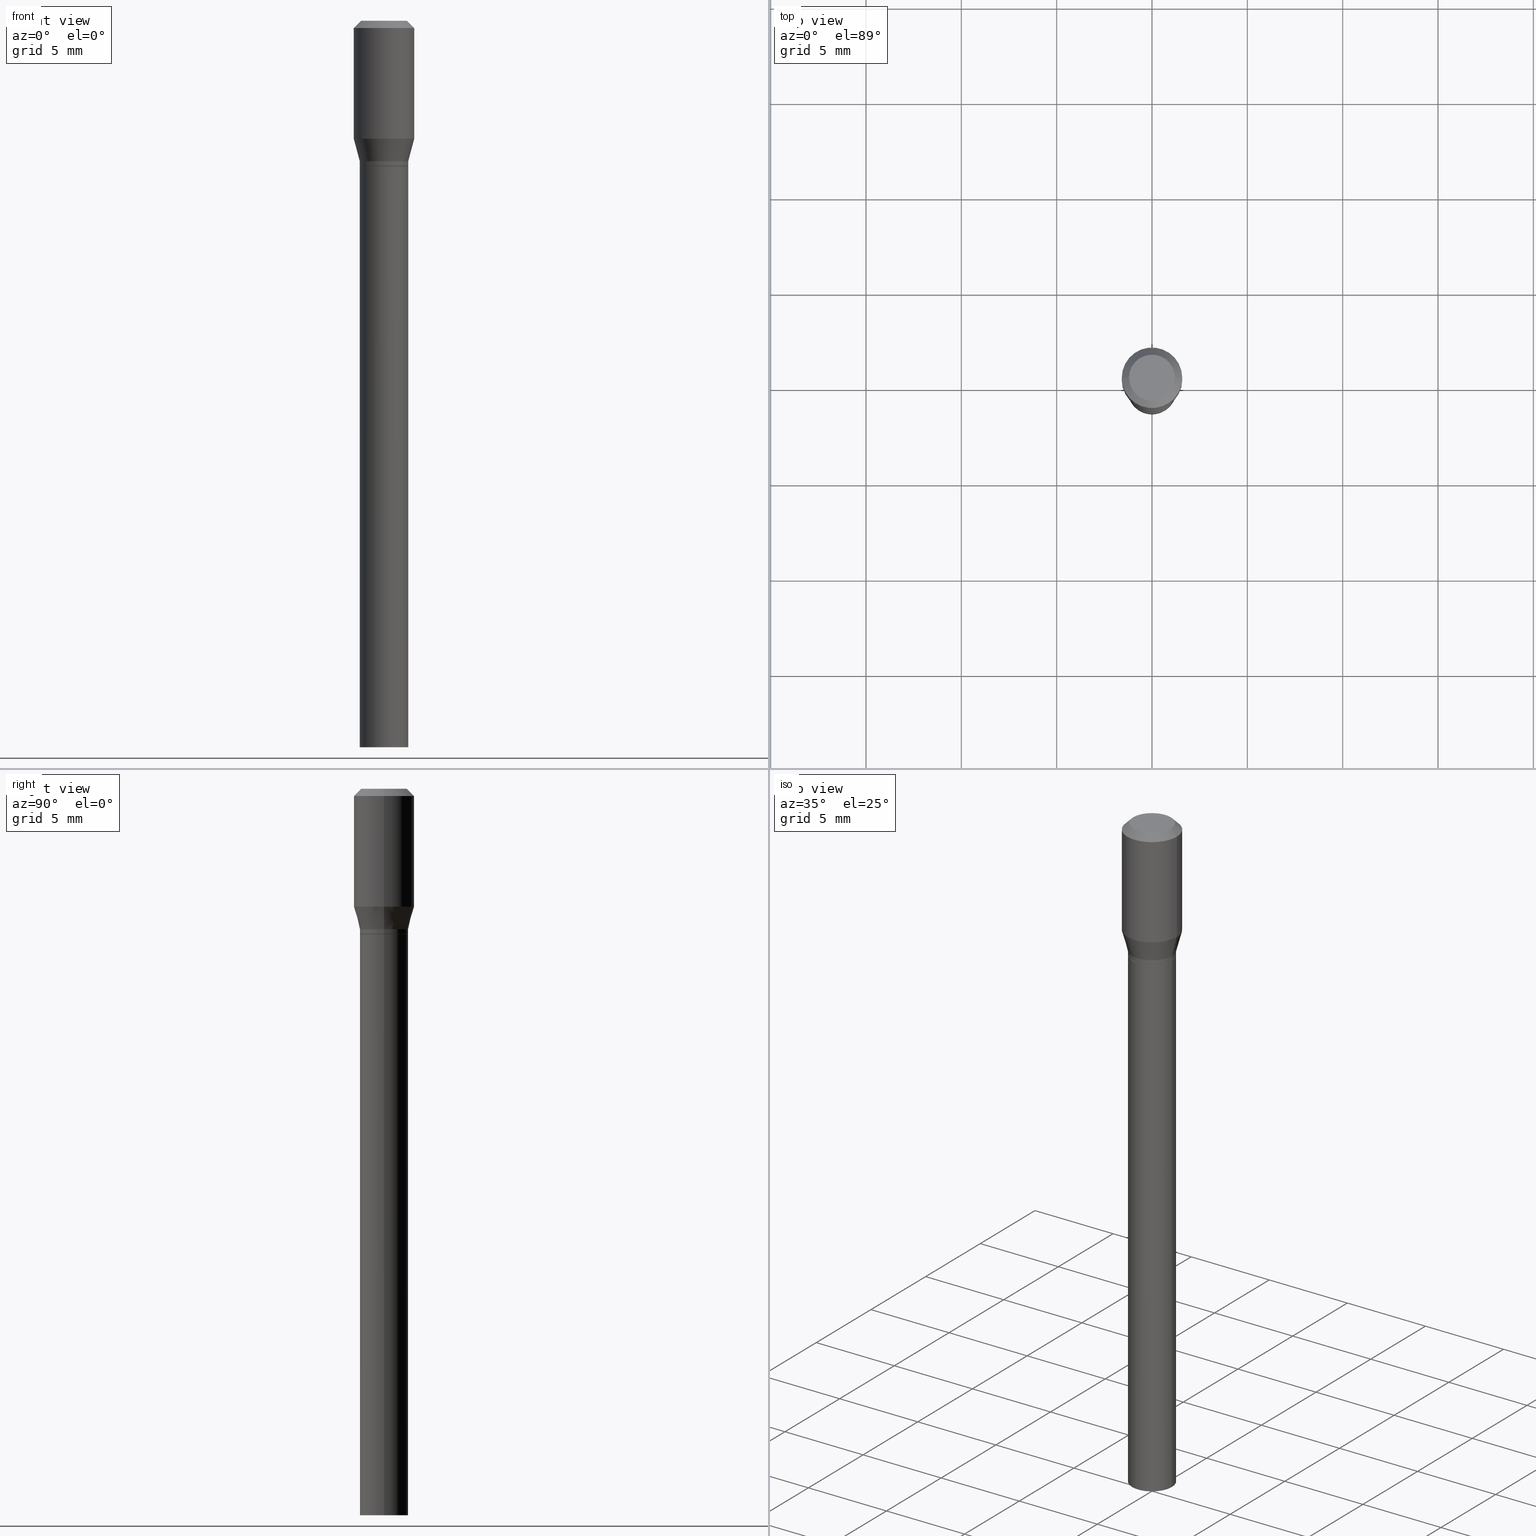
[diagram: canonical four-view strip — front | top / right | iso, engineering-drawing reading convention]
A machine part, canonical four-view strip (front | top / right | iso — engineering-drawing reading convention). The complete STEP part file that produces these views, byte-faithful:
ISO-10303-21;
HEADER;
FILE_DESCRIPTION (( 'STEP AP203' ),
    '1' );
FILE_NAME ('02716.STEP',
    '2024-03-18T21:37:17',
    ( '' ),
    ( '' ),
    'SwSTEP 2.0',
    'SolidWorks 2023',
    '' );
FILE_SCHEMA (( 'CONFIG_CONTROL_DESIGN' ));
ENDSEC;

DATA;
#1 = ADVANCED_FACE ( 'NONE', ( #269 ), #233, .F. ) ;
#2 = AXIS2_PLACEMENT_3D ( 'NONE', #274, #423, #183 ) ;
#3 = FACE_OUTER_BOUND ( 'NONE', #355, .T. ) ;
#4 = DIRECTION ( 'NONE',  ( -1.000000000000000000, 6.982962677686266711E-15, 0.000000000000000000 ) ) ;
#5 = EDGE_CURVE ( 'NONE', #420, #188, #295, .T. ) ;
#6 = FACE_OUTER_BOUND ( 'NONE', #330, .T. ) ;
#7 = ADVANCED_BREP_SHAPE_REPRESENTATION ( '02716', ( #438, #275, #167 ), #17 ) ;
#8 = CARTESIAN_POINT ( 'NONE',  ( -0.05000000000000000278, -6.572582203844627808E-16, -0.2900000000000002021 ) ) ;
#9 = DIRECTION ( 'NONE',  ( 1.000000000000000000, -6.982962677686264344E-15, 0.000000000000000000 ) ) ;
#10 = CC_DESIGN_PERSON_AND_ORGANIZATION_ASSIGNMENT ( #78, #408, ( #445 ) ) ;
#11 = AXIS2_PLACEMENT_3D ( 'NONE', #367, #107, #9 ) ;
#12 = DIRECTION ( 'NONE',  ( -2.445468806185136597E-29, 3.491481338843145583E-15, 1.000000000000000000 ) ) ;
#13 = ORIENTED_EDGE ( 'NONE', *, *, #365, .F. ) ;
#14 = CARTESIAN_POINT ( 'NONE',  ( 7.324179074524489343E-30, -1.045698660983522842E-15, -0.2995000000000002105 ) ) ;
#15 = ADVANCED_FACE ( 'NONE', ( #6 ), #370, .T. ) ;
#16 = AXIS2_PLACEMENT_3D ( 'NONE', #350, #25, #173 ) ;
#17 =( GEOMETRIC_REPRESENTATION_CONTEXT ( 3 ) GLOBAL_UNCERTAINTY_ASSIGNED_CONTEXT ( ( #301 ) ) GLOBAL_UNIT_ASSIGNED_CONTEXT ( ( #376, #121, #43 ) ) REPRESENTATION_CONTEXT ( 'NONE', 'WORKASPACE' ) );
#18 = CALENDAR_DATE ( 2024, 18, 3 ) ;
#19 = DIRECTION ( 'NONE',  ( -2.445468806185136597E-29, 3.491481338843145583E-15, 1.000000000000000000 ) ) ;
#20 = CARTESIAN_POINT ( 'NONE',  ( 0.05000000000000003053, -1.394846794867836572E-15, -0.2995000000000002105 ) ) ;
#21 = DIRECTION ( 'NONE',  ( -2.445468806185136597E-29, 3.491481338843145583E-15, 1.000000000000000000 ) ) ;
#22 = FACE_OUTER_BOUND ( 'NONE', #122, .T. ) ;
#23 = DIRECTION ( 'NONE',  ( 1.000000000000000000, -6.982962677686267499E-15, 4.884662768193073002E-29 ) ) ;
#24 = ADVANCED_FACE ( 'NONE', ( #213 ), #110, .T. ) ;
#25 = DIRECTION ( 'NONE',  ( -2.438088387897960049E-29, 3.491481338843145188E-15, 1.000000000000000000 ) ) ;
#26 = AXIS2_PLACEMENT_3D ( 'NONE', #249, #253, #392 ) ;
#27 = COORDINATED_UNIVERSAL_TIME_OFFSET ( 5, 0, .BEHIND. ) ;
#28 = DIRECTION ( 'NONE',  ( 1.000000000000000000, -6.982962677686267499E-15, 4.876176775795936353E-29 ) ) ;
#29 = LINE ( 'NONE', #437, #48 ) ;
#30 = ORIENTED_EDGE ( 'NONE', *, *, #71, .T. ) ;
#31 = DIRECTION ( 'NONE',  ( -2.445468806185136877E-29, 3.491481338843145188E-15, 1.000000000000000000 ) ) ;
#32 = DIRECTION ( 'NONE',  ( 1.000000000000000000, -6.982962677686265133E-15, 0.000000000000000000 ) ) ;
#33 = AXIS2_PLACEMENT_3D ( 'NONE', #190, #12, #58 ) ;
#34 = DIRECTION ( 'NONE',  ( -2.445468806185136597E-29, 3.491481338843145583E-15, 1.000000000000000000 ) ) ;
#35 = DIRECTION ( 'NONE',  ( 1.000000000000000000, -6.982962677686265922E-15, 4.876176775795935793E-29 ) ) ;
#36 = ORIENTED_EDGE ( 'NONE', *, *, #391, .F. ) ;
#37 = EDGE_LOOP ( 'NONE', ( #456, #189, #232, #13 ) ) ;
#38 = DATE_AND_TIME ( #123, #460 ) ;
#39 = ORIENTED_EDGE ( 'NONE', *, *, #331, .T. ) ;
#40 = DATE_AND_TIME ( #157, #309 ) ;
#41 = DIRECTION ( 'NONE',  ( 1.000000000000000000, -6.982962677686267499E-15, 4.876176775795936353E-29 ) ) ;
#42 = ORIENTED_EDGE ( 'NONE', *, *, #331, .F. ) ;
#43 =( NAMED_UNIT ( * ) SI_UNIT ( $, .STERADIAN. ) SOLID_ANGLE_UNIT ( ) );
#44 = FACE_OUTER_BOUND ( 'NONE', #287, .T. ) ;
#45 = ADVANCED_FACE ( 'NONE', ( #175 ), #396, .T. ) ;
#46 = CYLINDRICAL_SURFACE ( 'NONE', #181, 0.05000000000000000971 ) ;
#47 = CIRCLE ( 'NONE', #394, 0.06250000000000000000 ) ;
#48 = VECTOR ( 'NONE', #211, 39.37007874015748143 ) ;
#49 = AXIS2_PLACEMENT_3D ( 'NONE', #14, #346, #85 ) ;
#50 = DIRECTION ( 'NONE',  ( -1.000000000000000000, 6.982962677686265922E-15, -4.876176775795935793E-29 ) ) ;
#51 = DIRECTION ( 'NONE',  ( 1.000000000000000000, -6.982962677686265133E-15, 0.000000000000000000 ) ) ;
#52 = DIRECTION ( 'NONE',  ( -2.445468806185136597E-29, 3.491481338843145583E-15, 1.000000000000000000 ) ) ;
#53 = DIRECTION ( 'NONE',  ( -2.445468806185136597E-29, 3.491481338843145583E-15, 1.000000000000000000 ) ) ;
#54 = CARTESIAN_POINT ( 'NONE',  ( 0.05000000000000000278, -1.396592535537257878E-15, -0.3000000000000002109 ) ) ;
#55 = CONICAL_SURFACE ( 'NONE', #262, 0.06250000000000000000, 0.7853981633974456145 ) ;
#56 = CARTESIAN_POINT ( 'NONE',  ( 3.668203209277704895E-29, -5.237222008264718177E-15, -1.500000000000000222 ) ) ;
#57 = EDGE_CURVE ( 'NONE', #227, #372, #179, .T. ) ;
#58 = DIRECTION ( 'NONE',  ( 1.000000000000000000, -6.982962677686266711E-15, 4.876176775795935793E-29 ) ) ;
#59 = ORIENTED_EDGE ( 'NONE', *, *, #452, .T. ) ;
#60 = DIRECTION ( 'NONE',  ( 0.7071067811865454633, -7.319954787623246579E-15, -0.7071067811865493491 ) ) ;
#61 = CARTESIAN_POINT ( 'NONE',  ( 3.316907271900976096E-16, 0.04749999999999999362, -1.227548324517800049E-16 ) ) ;
#62 = DIRECTION ( 'NONE',  ( -2.445468806185136597E-29, 3.491481338843145583E-15, 1.000000000000000000 ) ) ;
#63 = DIRECTION ( 'NONE',  ( -2.445468806185136877E-29, 3.491481338843145188E-15, 1.000000000000000000 ) ) ;
#64 = ORIENTED_EDGE ( 'NONE', *, *, #425, .T. ) ;
#65 = ORIENTED_EDGE ( 'NONE', *, *, #254, .F. ) ;
#66 = CARTESIAN_POINT ( 'NONE',  ( -0.05000000000000003053, -6.904272931034725319E-16, -0.2995000000000002105 ) ) ;
#67 = EDGE_LOOP ( 'NONE', ( #410, #73, #239, #145 ) ) ;
#68 = FACE_OUTER_BOUND ( 'NONE', #151, .T. ) ;
#69 = EDGE_LOOP ( 'NONE', ( #36, #39, #64, #414 ) ) ;
#70 = APPROVAL_ROLE ( '' ) ;
#71 = EDGE_CURVE ( 'NONE', #451, #366, #101, .T. ) ;
#72 = ORIENTED_EDGE ( 'NONE', *, *, #384, .T. ) ;
#73 = ORIENTED_EDGE ( 'NONE', *, *, #117, .T. ) ;
#74 = AXIS2_PLACEMENT_3D ( 'NONE', #209, #92, #23 ) ;
#75 = APPROVAL_PERSON_ORGANIZATION ( #403, #398, #70 ) ;
#76 = ADVANCED_FACE ( 'NONE', ( #79 ), #160, .T. ) ;
#77 = ORIENTED_EDGE ( 'NONE', *, *, #241, .T. ) ;
#78 = PERSON_AND_ORGANIZATION ( #348, #87 ) ;
#79 = FACE_OUTER_BOUND ( 'NONE', #217, .T. ) ;
#80 = DIRECTION ( 'NONE',  ( -2.445468806185136877E-29, 3.491481338843145188E-15, 1.000000000000000000 ) ) ;
#81 = DIRECTION ( 'NONE',  ( -2.445468806185136597E-29, 3.491481338843145583E-15, 1.000000000000000000 ) ) ;
#82 = ORIENTED_EDGE ( 'NONE', *, *, #440, .T. ) ;
#83 = DATE_TIME_ROLE ( 'creation_date' ) ;
#84 = APPLICATION_PROTOCOL_DEFINITION ( 'international standard', 'config_control_design', 1994, #124 ) ;
#85 = DIRECTION ( 'NONE',  ( 1.000000000000000000, -6.982962677686268288E-15, 0.000000000000000000 ) ) ;
#86 = DIRECTION ( 'NONE',  ( -2.445468806185136597E-29, 3.491481338843145583E-15, 1.000000000000000000 ) ) ;
#87 = ORGANIZATION ( 'UNSPECIFIED', 'UNSPECIFIED', '' ) ;
#88 = CARTESIAN_POINT ( 'NONE',  ( 3.491481338843206325E-16, 0.04999999999999895500, -0.3000000000000003775 ) ) ;
#89 = EDGE_CURVE ( 'NONE', #302, #150, #29, .T. ) ;
#90 = CIRCLE ( 'NONE', #218, 0.05000000000000000278 ) ;
#91 = PERSON_AND_ORGANIZATION ( #348, #87 ) ;
#92 = DIRECTION ( 'NONE',  ( -2.445468806185136597E-29, 3.491481338843145583E-15, 1.000000000000000000 ) ) ;
#93 = DIRECTION ( 'NONE',  ( 1.000000000000000000, -6.982962677686265922E-15, 0.000000000000000000 ) ) ;
#94 = FACE_OUTER_BOUND ( 'NONE', #404, .T. ) ;
#95 = CALENDAR_DATE ( 2024, 18, 3 ) ;
#96 = EDGE_CURVE ( 'NONE', #219, #115, #216, .T. ) ;
#97 = DIRECTION ( 'NONE',  ( 2.445468806185136597E-29, -3.491481338843145583E-15, -1.000000000000000000 ) ) ;
#98 = CARTESIAN_POINT ( 'NONE',  ( 0.06250000000000000000, -4.811533449433679005E-16, -0.01499999999999999944 ) ) ;
#99 = CIRCLE ( 'NONE', #387, 0.05000000000000003053 ) ;
#100 = DIRECTION ( 'NONE',  ( 1.000000000000000000, -6.982962677686267499E-15, 4.876176775795936353E-29 ) ) ;
#101 = LINE ( 'NONE', #352, #158 ) ;
#102 = DIRECTION ( 'NONE',  ( 1.000000000000000000, -6.982962677686264344E-15, 0.000000000000000000 ) ) ;
#103 = FACE_OUTER_BOUND ( 'NONE', #312, .T. ) ;
#104 = APPROVAL_ROLE ( '' ) ;
#105 = DIRECTION ( 'NONE',  ( 1.000000000000000000, -6.982962677686264344E-15, 0.000000000000000000 ) ) ;
#106 = CARTESIAN_POINT ( 'NONE',  ( 0.000000000000000000, 0.000000000000000000, 0.000000000000000000 ) ) ;
#107 = DIRECTION ( 'NONE',  ( -2.445468806185136597E-29, 3.491481338843145583E-15, 1.000000000000000000 ) ) ;
#108 = APPROVAL_STATUS ( 'not_yet_approved' ) ;
#109 = ORIENTED_EDGE ( 'NONE', *, *, #57, .F. ) ;
#110 = CONICAL_SURFACE ( 'NONE', #26, 0.04950000000000000233, 0.7853981633974739252 ) ;
#111 = CARTESIAN_POINT ( 'NONE',  ( 0.06250000000000000000, -1.286084933741889410E-15, -0.2433493649053893038 ) ) ;
#112 = ORIENTED_EDGE ( 'NONE', *, *, #71, .F. ) ;
#113 = SHAPE_DEFINITION_REPRESENTATION ( #360, #7 ) ;
#114 = APPROVAL ( #443, 'UNSPECIFIED' ) ;
#115 = VERTEX_POINT ( 'NONE', #462 ) ;
#116 = ORIENTED_EDGE ( 'NONE', *, *, #409, .T. ) ;
#117 = EDGE_CURVE ( 'NONE', #147, #219, #135, .T. ) ;
#118 = VERTEX_POINT ( 'NONE', #212 ) ;
#119 = CIRCLE ( 'NONE', #453, 0.05000000000000000278 ) ;
#120 = CIRCLE ( 'NONE', #306, 0.05000000000000000278 ) ;
#121 =( NAMED_UNIT ( * ) PLANE_ANGLE_UNIT ( ) SI_UNIT ( $, .RADIAN. ) );
#122 = EDGE_LOOP ( 'NONE', ( #435, #65 ) ) ;
#123 = CALENDAR_DATE ( 2024, 18, 3 ) ;
#124 = APPLICATION_CONTEXT ( 'configuration controlled 3d designs of mechanical parts and assemblies' ) ;
#125 = DIRECTION ( 'NONE',  ( -2.445468806185136877E-29, 3.491481338843145188E-15, 1.000000000000000000 ) ) ;
#126 = VECTOR ( 'NONE', #293, 39.37007874015748143 ) ;
#127 = AXIS2_PLACEMENT_3D ( 'NONE', #61, #300, #131 ) ;
#128 = EDGE_CURVE ( 'NONE', #366, #156, #308, .T. ) ;
#129 = PERSON_AND_ORGANIZATION_ROLE ( 'classification_officer' ) ;
#130 = DIRECTION ( 'NONE',  ( 2.438088387897960049E-29, -3.491481338843145188E-15, -1.000000000000000000 ) ) ;
#131 = DIRECTION ( 'NONE',  ( -1.000000000000000000, 6.982962677686265922E-15, -4.876176775795935793E-29 ) ) ;
#132 = FACE_OUTER_BOUND ( 'NONE', #257, .T. ) ;
#133 = CIRCLE ( 'NONE', #208, 0.06250000000000000000 ) ;
#134 = ADVANCED_FACE ( 'NONE', ( #103 ), #280, .T. ) ;
#135 = LINE ( 'NONE', #98, #385 ) ;
#136 = EDGE_CURVE ( 'NONE', #227, #193, #326, .T. ) ;
#137 = CARTESIAN_POINT ( 'NONE',  ( 3.668203209277705088E-31, -5.237222008264718399E-17, -0.01499999999999999944 ) ) ;
#138 = AXIS2_PLACEMENT_3D ( 'NONE', #458, #19, #316 ) ;
#139 = AXIS2_PLACEMENT_3D ( 'NONE', #349, #279, #432 ) ;
#140 = CIRCLE ( 'NONE', #138, 0.04749999999999999362 ) ;
#141 = CARTESIAN_POINT ( 'NONE',  ( -0.04950000000000000233, -6.957257474516949340E-16, -0.3000000000000002109 ) ) ;
#142 = CARTESIAN_POINT ( 'NONE',  ( 7.091859537936900503E-30, -1.012529588264512893E-15, -0.2900000000000002021 ) ) ;
#143 = CARTESIAN_POINT ( 'NONE',  ( 0.000000000000000000, 0.000000000000000000, 0.000000000000000000 ) ) ;
#144 = APPLICATION_PROTOCOL_DEFINITION ( 'international standard', 'config_control_design', 1994, #426 ) ;
#145 = ORIENTED_EDGE ( 'NONE', *, *, #409, .F. ) ;
#146 = ORIENTED_EDGE ( 'NONE', *, *, #425, .F. ) ;
#147 = VERTEX_POINT ( 'NONE', #180 ) ;
#148 = DIRECTION ( 'NONE',  ( -0.2588190451025211281, 5.211531920934547886E-15, 0.9659258262890679791 ) ) ;
#149 = EDGE_CURVE ( 'NONE', #193, #227, #381, .T. ) ;
#150 = VERTEX_POINT ( 'NONE', #245 ) ;
#151 = EDGE_LOOP ( 'NONE', ( #415, #264 ) ) ;
#152 = LENGTH_MEASURE_WITH_UNIT ( LENGTH_MEASURE( 0.02539999999999999897 ), #191 );
#153 = ORIENTED_EDGE ( 'NONE', *, *, #246, .F. ) ;
#154 = ORIENTED_EDGE ( 'NONE', *, *, #419, .F. ) ;
#155 = VECTOR ( 'NONE', #148, 39.37007874015748854 ) ;
#156 = VERTEX_POINT ( 'NONE', #324 ) ;
#157 = CALENDAR_DATE ( 2024, 18, 3 ) ;
#158 = VECTOR ( 'NONE', #322, 39.37007874015748854 ) ;
#159 = VECTOR ( 'NONE', #31, 39.37007874015748143 ) ;
#160 = CYLINDRICAL_SURFACE ( 'NONE', #33, 0.06250000000000000000 ) ;
#161 = DIRECTION ( 'NONE',  ( -2.445468806185136597E-29, 3.491481338843145583E-15, 1.000000000000000000 ) ) ;
#162 = DIMENSIONAL_EXPONENTS ( 1.000000000000000000, 0.000000000000000000, 0.000000000000000000, 0.000000000000000000, 0.000000000000000000, 0.000000000000000000, 0.000000000000000000 ) ;
#163 = ADVANCED_FACE ( 'NONE', ( #3 ), #389, .T. ) ;
#164 = LINE ( 'NONE', #313, #413 ) ;
#165 = CC_DESIGN_DATE_AND_TIME_ASSIGNMENT ( #170, #315, ( #339 ) ) ;
#166 = PLANE ( 'NONE',  #196 ) ;
#167 = AXIS2_PLACEMENT_3D ( 'NONE', #418, #236, #379 ) ;
#168 = ADVANCED_FACE ( 'NONE', ( #22 ), #171, .F. ) ;
#169 = ORIENTED_EDGE ( 'NONE', *, *, #294, .T. ) ;
#170 = DATE_AND_TIME ( #18, #411 ) ;
#171 = PLANE ( 'NONE',  #16 ) ;
#172 = DIRECTION ( 'NONE',  ( -2.445468806185136597E-29, 3.491481338843145583E-15, 1.000000000000000000 ) ) ;
#173 = DIRECTION ( 'NONE',  ( 1.000000000000000000, -6.982962677686265922E-15, 4.876176775795935793E-29 ) ) ;
#174 = DIRECTION ( 'NONE',  ( 2.445468806185136597E-29, -3.491481338843145583E-15, -1.000000000000000000 ) ) ;
#175 = FACE_OUTER_BOUND ( 'NONE', #69, .T. ) ;
#176 = DIRECTION ( 'NONE',  ( -2.445468806185136597E-29, 3.491481338843145583E-15, 1.000000000000000000 ) ) ;
#177 = EDGE_CURVE ( 'NONE', #115, #219, #133, .T. ) ;
#178 = DIRECTION ( 'NONE',  ( -2.445468806185136597E-29, 3.491481338843145583E-15, 1.000000000000000000 ) ) ;
#179 = LINE ( 'NONE', #141, #126 ) ;
#180 = CARTESIAN_POINT ( 'NONE',  ( 0.04749999999999999362, -4.035134999187576651E-16, 8.618106228654135916E-17 ) ) ;
#181 = AXIS2_PLACEMENT_3D ( 'NONE', #106, #81, #41 ) ;
#182 = DIRECTION ( 'NONE',  ( 1.000000000000000000, -6.982962677686268288E-15, 0.000000000000000000 ) ) ;
#183 = DIRECTION ( 'NONE',  ( 1.000000000000000000, -6.982962677686267499E-15, 0.000000000000000000 ) ) ;
#184 = DIRECTION ( 'NONE',  ( -0.7071067811865454633, 2.468850131082235761E-15, -0.7071067811865493491 ) ) ;
#185 = ORIENTED_EDGE ( 'NONE', *, *, #337, .T. ) ;
#186 = ORIENTED_EDGE ( 'NONE', *, *, #136, .T. ) ;
#187 = ADVANCED_FACE ( 'NONE', ( #94 ), #166, .F. ) ;
#188 = VERTEX_POINT ( 'NONE', #54 ) ;
#189 = ORIENTED_EDGE ( 'NONE', *, *, #57, .T. ) ;
#190 = CARTESIAN_POINT ( 'NONE',  ( 0.000000000000000000, 0.000000000000000000, 0.000000000000000000 ) ) ;
#191 =( LENGTH_UNIT ( ) NAMED_UNIT ( * ) SI_UNIT ( $, .METRE. ) );
#192 = CC_DESIGN_PERSON_AND_ORGANIZATION_ASSIGNMENT ( #247, #286, ( #441 ) ) ;
#193 = VERTEX_POINT ( 'NONE', #204 ) ;
#194 = EDGE_LOOP ( 'NONE', ( #407, #290 ) ) ;
#195 = ADVANCED_FACE ( 'NONE', ( #132 ), #463, .T. ) ;
#196 = AXIS2_PLACEMENT_3D ( 'NONE', #88, #130, #50 ) ;
#197 = CC_DESIGN_DATE_AND_TIME_ASSIGNMENT ( #40, #83, ( #445 ) ) ;
#198 = CC_DESIGN_APPROVAL ( #234, ( #339 ) ) ;
#199 = CARTESIAN_POINT ( 'NONE',  ( 7.091859537936900503E-30, -1.012529588264512893E-15, -0.2900000000000002021 ) ) ;
#200 = AXIS2_PLACEMENT_3D ( 'NONE', #465, #399, #319 ) ;
#201 = LOCAL_TIME ( 17, 37, 17.00000000000000000, #27 ) ;
#202 = CARTESIAN_POINT ( 'NONE',  ( -0.05000000000000000278, -2.787061837078781050E-15, -1.500000000000000222 ) ) ;
#203 = DIRECTION ( 'NONE',  ( 1.000000000000000000, -6.982962677686265922E-15, 0.000000000000000000 ) ) ;
#204 = CARTESIAN_POINT ( 'NONE',  ( 0.04950000000000000233, -1.393101054198414674E-15, -0.3000000000000002109 ) ) ;
#205 = PRODUCT_RELATED_PRODUCT_CATEGORY ( 'detail', '', ( #441 ) ) ;
#206 = CARTESIAN_POINT ( 'NONE',  ( 7.336406418555414555E-30, -1.047444401652944543E-15, -0.3000000000000002109 ) ) ;
#207 = CARTESIAN_POINT ( 'NONE',  ( -0.04950000000000000233, -6.930765202775837329E-16, -0.3000000000000002109 ) ) ;
#208 = AXIS2_PLACEMENT_3D ( 'NONE', #137, #284, #431 ) ;
#209 = CARTESIAN_POINT ( 'NONE',  ( -2.107530995056288845E-45, 3.008995707351289501E-31, 8.618106228653878303E-17 ) ) ;
#210 = CARTESIAN_POINT ( 'NONE',  ( 0.05000000000000000278, -1.361677722148826229E-15, -0.2900000000000002021 ) ) ;
#211 = DIRECTION ( 'NONE',  ( -2.445468806185136877E-29, 3.491481338843145188E-15, 1.000000000000000000 ) ) ;
#212 = CARTESIAN_POINT ( 'NONE',  ( -0.05000000000000000278, -5.314093884604490017E-16, -0.2900000000000002021 ) ) ;
#213 = FACE_OUTER_BOUND ( 'NONE', #37, .T. ) ;
#214 = APPROVAL_PERSON_ORGANIZATION ( #461, #234, #261 ) ;
#215 = CARTESIAN_POINT ( 'NONE',  ( -0.04749999999999999362, 3.578768372314211985E-16, 8.618106228653636715E-17 ) ) ;
#216 = CIRCLE ( 'NONE', #200, 0.06250000000000000000 ) ;
#217 = EDGE_LOOP ( 'NONE', ( #266, #185, #446, #397 ) ) ;
#218 = AXIS2_PLACEMENT_3D ( 'NONE', #235, #161, #311 ) ;
#219 = VERTEX_POINT ( 'NONE', #345 ) ;
#220 = DIRECTION ( 'NONE',  ( 0.7071067811865656694, -2.468850131082446387E-15, 0.7071067811865294761 ) ) ;
#221 = ORIENTED_EDGE ( 'NONE', *, *, #89, .F. ) ;
#222 = ADVANCED_FACE ( 'NONE', ( #395 ), #55, .T. ) ;
#223 = LINE ( 'NONE', #8, #155 ) ;
#224 = CARTESIAN_POINT ( 'NONE',  ( -0.06250000000000000000, 3.840629472727444916E-16, -0.01499999999999999944 ) ) ;
#225 = APPROVAL_DATE_TIME ( #356, #234 ) ;
#226 = VERTEX_POINT ( 'NONE', #20 ) ;
#227 = VERTEX_POINT ( 'NONE', #207 ) ;
#228 = COORDINATED_UNIVERSAL_TIME_OFFSET ( 5, 0, .BEHIND. ) ;
#229 = ORIENTED_EDGE ( 'NONE', *, *, #354, .T. ) ;
#230 = AXIS2_PLACEMENT_3D ( 'NONE', #357, #52, #203 ) ;
#231 = CC_DESIGN_SECURITY_CLASSIFICATION ( #339, ( #428 ) ) ;
#232 = ORIENTED_EDGE ( 'NONE', *, *, #440, .F. ) ;
#233 = PLANE ( 'NONE',  #361 ) ;
#234 = APPROVAL ( #108, 'UNSPECIFIED' ) ;
#235 = CARTESIAN_POINT ( 'NONE',  ( 7.336406418555414555E-30, -1.047444401652944543E-15, -0.3000000000000002109 ) ) ;
#236 = DIRECTION ( 'NONE',  ( 0.000000000000000000, 0.000000000000000000, 1.000000000000000000 ) ) ;
#237 = FACE_OUTER_BOUND ( 'NONE', #304, .T. ) ;
#238 = MECHANICAL_CONTEXT ( 'NONE', #124, 'mechanical' ) ;
#239 = ORIENTED_EDGE ( 'NONE', *, *, #96, .T. ) ;
#240 = CLOSED_SHELL ( 'NONE', ( #457, #24, #447, #76, #263, #285, #195, #222, #267, #1, #134, #45 ) ) ;
#241 = EDGE_CURVE ( 'NONE', #420, #302, #333, .T. ) ;
#242 = PERSON_AND_ORGANIZATION ( #348, #87 ) ;
#243 = VECTOR ( 'NONE', #184, 39.37007874015748854 ) ;
#244 = PERSON_AND_ORGANIZATION_ROLE ( 'design_supplier' ) ;
#245 = CARTESIAN_POINT ( 'NONE',  ( -0.05000000000000000278, -2.787061837078781050E-15, -0.3000000000000002109 ) ) ;
#246 = EDGE_CURVE ( 'NONE', #406, #147, #291, .T. ) ;
#247 = PERSON_AND_ORGANIZATION ( #348, #87 ) ;
#248 = CARTESIAN_POINT ( 'NONE',  ( 7.336406418555414555E-30, -1.047444401652944543E-15, -0.3000000000000002109 ) ) ;
#249 = CARTESIAN_POINT ( 'NONE',  ( 7.336406418555414555E-30, -1.047444401652944543E-15, -0.3000000000000002109 ) ) ;
#250 = CC_DESIGN_PERSON_AND_ORGANIZATION_ASSIGNMENT ( #276, #244, ( #428 ) ) ;
#251 = AXIS2_PLACEMENT_3D ( 'NONE', #288, #439, #100 ) ;
#252 = APPROVAL_PERSON_ORGANIZATION ( #323, #114, #104 ) ;
#253 = DIRECTION ( 'NONE',  ( -2.445468806185136597E-29, 3.491481338843145583E-15, 1.000000000000000000 ) ) ;
#254 = EDGE_CURVE ( 'NONE', #302, #420, #119, .T. ) ;
#255 = CARTESIAN_POINT ( 'NONE',  ( 7.091859537936900503E-30, -1.012529588264512893E-15, -0.2900000000000002021 ) ) ;
#256 = ORIENTED_EDGE ( 'NONE', *, *, #5, .T. ) ;
#257 = EDGE_LOOP ( 'NONE', ( #449, #169, #59, #329 ) ) ;
#258 = ORIENTED_EDGE ( 'NONE', *, *, #455, .T. ) ;
#259 = CARTESIAN_POINT ( 'NONE',  ( 0.04950000000000000233, -1.393101054198414674E-15, -0.3000000000000002109 ) ) ;
#260 = LINE ( 'NONE', #371, #159 ) ;
#261 = APPROVAL_ROLE ( '' ) ;
#262 = AXIS2_PLACEMENT_3D ( 'NONE', #388, #174, #277 ) ;
#263 = ADVANCED_FACE ( 'NONE', ( #444 ), #359, .T. ) ;
#264 = ORIENTED_EDGE ( 'NONE', *, *, #289, .T. ) ;
#265 = ORIENTED_EDGE ( 'NONE', *, *, #254, .T. ) ;
#266 = ORIENTED_EDGE ( 'NONE', *, *, #128, .T. ) ;
#267 = ADVANCED_FACE ( 'NONE', ( #68 ), #325, .F. ) ;
#268 = CIRCLE ( 'NONE', #11, 0.05000000000000000278 ) ;
#269 = FACE_OUTER_BOUND ( 'NONE', #194, .T. ) ;
#270 = CIRCLE ( 'NONE', #49, 0.05000000000000003053 ) ;
#271 = ORIENTED_EDGE ( 'NONE', *, *, #343, .F. ) ;
#272 = ORIENTED_EDGE ( 'NONE', *, *, #128, .F. ) ;
#273 = LOCAL_TIME ( 17, 37, 17.00000000000000000, #283 ) ;
#274 = CARTESIAN_POINT ( 'NONE',  ( 7.336406418555414555E-30, -1.047444401652944543E-15, -0.3000000000000002109 ) ) ;
#275 = MANIFOLD_SOLID_BREP ( 'Body-Move/Copy2[2]', #240 ) ;
#276 = PERSON_AND_ORGANIZATION ( #348, #87 ) ;
#277 = DIRECTION ( 'NONE',  ( -1.000000000000000000, 6.982962677686266711E-15, 0.000000000000000000 ) ) ;
#278 = CARTESIAN_POINT ( 'NONE',  ( 5.951032808810935240E-30, -8.496497663864978389E-16, -0.2433493649053893038 ) ) ;
#279 = DIRECTION ( 'NONE',  ( -2.445468806185136597E-29, 3.491481338843145583E-15, 1.000000000000000000 ) ) ;
#280 = CONICAL_SURFACE ( 'NONE', #421, 0.04950000000000000233, 0.7853981633974739252 ) ;
#281 = CC_DESIGN_APPROVAL ( #398, ( #428 ) ) ;
#282 = CARTESIAN_POINT ( 'NONE',  ( 5.951032808810935240E-30, -8.496497663864978389E-16, -0.2433493649053893038 ) ) ;
#283 = COORDINATED_UNIVERSAL_TIME_OFFSET ( 5, 0, .BEHIND. ) ;
#284 = DIRECTION ( 'NONE',  ( -2.445468806185136597E-29, 3.491481338843145583E-15, 1.000000000000000000 ) ) ;
#285 = ADVANCED_FACE ( 'NONE', ( #44 ), #341, .T. ) ;
#286 = PERSON_AND_ORGANIZATION_ROLE ( 'design_owner' ) ;
#287 = EDGE_LOOP ( 'NONE', ( #382, #229, #30, #448 ) ) ;
#288 = CARTESIAN_POINT ( 'NONE',  ( 0.000000000000000000, 0.000000000000000000, 0.000000000000000000 ) ) ;
#289 = EDGE_CURVE ( 'NONE', #147, #406, #140, .T. ) ;
#290 = ORIENTED_EDGE ( 'NONE', *, *, #136, .F. ) ;
#291 = CIRCLE ( 'NONE', #74, 0.04749999999999999362 ) ;
#292 = VECTOR ( 'NONE', #80, 39.37007874015748143 ) ;
#293 = DIRECTION ( 'NONE',  ( -0.7071067811865656694, 7.493145998870420424E-15, 0.7071067811865294761 ) ) ;
#294 = EDGE_CURVE ( 'NONE', #156, #366, #47, .T. ) ;
#295 = LINE ( 'NONE', #368, #459 ) ;
#296 = LINE ( 'NONE', #224, #243 ) ;
#297 = AXIS2_PLACEMENT_3D ( 'NONE', #206, #176, #93 ) ;
#298 = ORIENTED_EDGE ( 'NONE', *, *, #365, .T. ) ;
#299 = ORIENTED_EDGE ( 'NONE', *, *, #5, .F. ) ;
#300 = DIRECTION ( 'NONE',  ( 2.438088387897960049E-29, -3.491481338843145188E-15, -1.000000000000000000 ) ) ;
#301 = UNCERTAINTY_MEASURE_WITH_UNIT (LENGTH_MEASURE( 1.000000000000000082E-05 ), #376, 'distance_accuracy_value', 'NONE');
#302 = VERTEX_POINT ( 'NONE', #202 ) ;
#303 = APPROVAL_DATE_TIME ( #416, #114 ) ;
#304 = EDGE_LOOP ( 'NONE', ( #82, #433, #154, #146 ) ) ;
#305 = ORIENTED_EDGE ( 'NONE', *, *, #117, .F. ) ;
#306 = AXIS2_PLACEMENT_3D ( 'NONE', #142, #358, #102 ) ;
#307 = DIRECTION ( 'NONE',  ( -2.438088387897960049E-29, 3.491481338843145188E-15, 1.000000000000000000 ) ) ;
#308 = CIRCLE ( 'NONE', #340, 0.06250000000000000000 ) ;
#309 = LOCAL_TIME ( 17, 37, 17.00000000000000000, #369 ) ;
#310 = APPROVAL_STATUS ( 'not_yet_approved' ) ;
#311 = DIRECTION ( 'NONE',  ( 1.000000000000000000, -6.982962677686267499E-15, 0.000000000000000000 ) ) ;
#312 = EDGE_LOOP ( 'NONE', ( #109, #186, #298, #42 ) ) ;
#313 = CARTESIAN_POINT ( 'NONE',  ( -0.06250000000000000000, 4.440892098500626162E-16, -3.074334431409316114E-30 ) ) ;
#314 = AXIS2_PLACEMENT_3D ( 'NONE', #255, #178, #105 ) ;
#315 = DATE_TIME_ROLE ( 'classification_date' ) ;
#316 = DIRECTION ( 'NONE',  ( 1.000000000000000000, -6.982962677686267499E-15, 4.884662768193073002E-29 ) ) ;
#317 = CC_DESIGN_PERSON_AND_ORGANIZATION_ASSIGNMENT ( #242, #129, ( #339 ) ) ;
#318 = DIRECTION ( 'NONE',  ( 1.000000000000000000, -6.982962677686274599E-15, 0.000000000000000000 ) ) ;
#319 = DIRECTION ( 'NONE',  ( 1.000000000000000000, -6.982962677686266711E-15, 0.000000000000000000 ) ) ;
#320 = CARTESIAN_POINT ( 'NONE',  ( 3.668203209277704895E-29, -5.237222008264718177E-15, -1.500000000000000222 ) ) ;
#321 = DIRECTION ( 'NONE',  ( -2.445468806185136597E-29, 3.491481338843145583E-15, 1.000000000000000000 ) ) ;
#322 = DIRECTION ( 'NONE',  ( 0.2588190451025211281, 1.565188264969622954E-15, 0.9659258262890679791 ) ) ;
#323 = PERSON_AND_ORGANIZATION ( #348, #87 ) ;
#324 = CARTESIAN_POINT ( 'NONE',  ( -0.06250000000000000000, -4.055605565364353213E-16, -0.2433493649053893038 ) ) ;
#325 = PLANE ( 'NONE',  #127 ) ;
#326 = CIRCLE ( 'NONE', #230, 0.04950000000000000233 ) ;
#327 = VECTOR ( 'NONE', #63, 39.37007874015748143 ) ;
#328 = FACE_OUTER_BOUND ( 'NONE', #67, .T. ) ;
#329 = ORIENTED_EDGE ( 'NONE', *, *, #177, .F. ) ;
#330 = EDGE_LOOP ( 'NONE', ( #77, #375, #338, #299 ) ) ;
#331 = EDGE_CURVE ( 'NONE', #372, #226, #270, .T. ) ;
#332 = DIRECTION ( 'NONE',  ( -2.445468806185136877E-29, 3.491481338843145188E-15, 1.000000000000000000 ) ) ;
#333 = CIRCLE ( 'NONE', #393, 0.05000000000000000278 ) ;
#334 = CC_DESIGN_APPROVAL ( #114, ( #445 ) ) ;
#335 = LINE ( 'NONE', #259, #362 ) ;
#336 = CARTESIAN_POINT ( 'NONE',  ( 0.06250000000000000000, -4.364351673553916694E-16, 3.047610484872459871E-30 ) ) ;
#337 = EDGE_CURVE ( 'NONE', #156, #115, #164, .T. ) ;
#338 = ORIENTED_EDGE ( 'NONE', *, *, #455, .F. ) ;
#339 = SECURITY_CLASSIFICATION ( '', '', #386 ) ;
#340 = AXIS2_PLACEMENT_3D ( 'NONE', #282, #442, #32 ) ;
#341 = CONICAL_SURFACE ( 'NONE', #422, 0.05000000000000000278, 0.2617993877991498519 ) ;
#342 = DIRECTION ( 'NONE',  ( 1.000000000000000000, -6.982962677686264344E-15, 0.000000000000000000 ) ) ;
#343 = EDGE_CURVE ( 'NONE', #150, #188, #436, .T. ) ;
#344 = PERSON_AND_ORGANIZATION_ROLE ( 'creator' ) ;
#345 = CARTESIAN_POINT ( 'NONE',  ( 0.06250000000000000000, -4.888073874380388472E-16, -0.01499999999999999944 ) ) ;
#346 = DIRECTION ( 'NONE',  ( -2.445468806185136597E-29, 3.491481338843145583E-15, 1.000000000000000000 ) ) ;
#347 = DIRECTION ( 'NONE',  ( 1.000000000000000000, -6.982962677686267499E-15, 4.876176775795936353E-29 ) ) ;
#348 = PERSON ( 'UNSPECIFIED', 'UNSPECIFIED', 'UNSPECIFIED', ('UNSPECIFIED'), ('UNSPECIFIED'), ('UNSPECIFIED') ) ;
#349 = CARTESIAN_POINT ( 'NONE',  ( 0.000000000000000000, 0.000000000000000000, 0.000000000000000000 ) ) ;
#350 = CARTESIAN_POINT ( 'NONE',  ( 3.576687321579069994E-29, -5.368277968210015545E-15, -1.500000000000000222 ) ) ;
#351 = DIRECTION ( 'NONE',  ( 1.000000000000000000, -6.982962677686274599E-15, 0.000000000000000000 ) ) ;
#352 = CARTESIAN_POINT ( 'NONE',  ( 0.05000000000000000278, -1.361677722148826229E-15, -0.2900000000000002021 ) ) ;
#353 = AXIS2_PLACEMENT_3D ( 'NONE', #400, #62, #28 ) ;
#354 = EDGE_CURVE ( 'NONE', #118, #451, #268, .T. ) ;
#355 = EDGE_LOOP ( 'NONE', ( #221, #265, #256, #271 ) ) ;
#356 = DATE_AND_TIME ( #434, #273 ) ;
#357 = CARTESIAN_POINT ( 'NONE',  ( 7.336406418555414555E-30, -1.047444401652944543E-15, -0.3000000000000002109 ) ) ;
#358 = DIRECTION ( 'NONE',  ( -2.445468806185136597E-29, 3.491481338843145583E-15, 1.000000000000000000 ) ) ;
#359 = CONICAL_SURFACE ( 'NONE', #314, 0.05000000000000000278, 0.2617993877991498519 ) ;
#360 = PRODUCT_DEFINITION_SHAPE ( 'NONE', 'NONE',  #445 ) ;
#361 = AXIS2_PLACEMENT_3D ( 'NONE', #364, #307, #35 ) ;
#362 = VECTOR ( 'NONE', #220, 39.37007874015748143 ) ;
#363 = CARTESIAN_POINT ( 'NONE',  ( 7.324179074524489343E-30, -1.045698660983522842E-15, -0.2995000000000002105 ) ) ;
#364 = CARTESIAN_POINT ( 'NONE',  ( 7.336406418555414555E-30, -1.047444401652944543E-15, -0.3000000000000002109 ) ) ;
#365 = EDGE_CURVE ( 'NONE', #193, #226, #335, .T. ) ;
#366 = VERTEX_POINT ( 'NONE', #111 ) ;
#367 = CARTESIAN_POINT ( 'NONE',  ( 7.091859537936900503E-30, -1.012529588264512893E-15, -0.2900000000000002021 ) ) ;
#368 = CARTESIAN_POINT ( 'NONE',  ( 0.05000000000000000278, -3.491481338843133848E-16, 2.438088387897968247E-30 ) ) ;
#369 = COORDINATED_UNIVERSAL_TIME_OFFSET ( 5, 0, .BEHIND. ) ;
#370 = CYLINDRICAL_SURFACE ( 'NONE', #353, 0.05000000000000000278 ) ;
#371 = CARTESIAN_POINT ( 'NONE',  ( 0.05000000000000000971, -3.491481338843134341E-16, 2.438088387897968597E-30 ) ) ;
#372 = VERTEX_POINT ( 'NONE', #66 ) ;
#373 = LINE ( 'NONE', #466, #327 ) ;
#374 = CLOSED_SHELL ( 'NONE', ( #15, #168, #163, #187 ) ) ;
#375 = ORIENTED_EDGE ( 'NONE', *, *, #89, .T. ) ;
#376 =( CONVERSION_BASED_UNIT ( 'INCH', #152 ) LENGTH_UNIT ( ) NAMED_UNIT ( #162 ) );
#377 = ORIENTED_EDGE ( 'NONE', *, *, #177, .T. ) ;
#378 = EDGE_LOOP ( 'NONE', ( #402, #72, #272, #112 ) ) ;
#379 = DIRECTION ( 'NONE',  ( 1.000000000000000000, 0.000000000000000000, 0.000000000000000000 ) ) ;
#380 = ORIENTED_EDGE ( 'NONE', *, *, #343, .T. ) ;
#381 = CIRCLE ( 'NONE', #297, 0.04950000000000000233 ) ;
#382 = ORIENTED_EDGE ( 'NONE', *, *, #384, .F. ) ;
#383 = COORDINATED_UNIVERSAL_TIME_OFFSET ( 5, 0, .BEHIND. ) ;
#384 = EDGE_CURVE ( 'NONE', #118, #156, #223, .T. ) ;
#385 = VECTOR ( 'NONE', #60, 39.37007874015748854 ) ;
#386 = SECURITY_CLASSIFICATION_LEVEL ( 'unclassified' ) ;
#387 = AXIS2_PLACEMENT_3D ( 'NONE', #363, #34, #182 ) ;
#388 = CARTESIAN_POINT ( 'NONE',  ( 3.668203209277705088E-31, -5.237222008264718399E-17, -0.01499999999999999944 ) ) ;
#389 = CYLINDRICAL_SURFACE ( 'NONE', #412, 0.05000000000000000278 ) ;
#390 = DIRECTION ( 'NONE',  ( -2.445468806185136597E-29, 3.491481338843145583E-15, 1.000000000000000000 ) ) ;
#391 = EDGE_CURVE ( 'NONE', #372, #118, #373, .T. ) ;
#392 = DIRECTION ( 'NONE',  ( 1.000000000000000000, -6.982962677686265922E-15, 0.000000000000000000 ) ) ;
#393 = AXIS2_PLACEMENT_3D ( 'NONE', #56, #172, #318 ) ;
#394 = AXIS2_PLACEMENT_3D ( 'NONE', #278, #86, #51 ) ;
#395 = FACE_OUTER_BOUND ( 'NONE', #401, .T. ) ;
#396 = CYLINDRICAL_SURFACE ( 'NONE', #251, 0.05000000000000000971 ) ;
#397 = ORIENTED_EDGE ( 'NONE', *, *, #452, .F. ) ;
#398 = APPROVAL ( #310, 'UNSPECIFIED' ) ;
#399 = DIRECTION ( 'NONE',  ( -2.445468806185136597E-29, 3.491481338843145583E-15, 1.000000000000000000 ) ) ;
#400 = CARTESIAN_POINT ( 'NONE',  ( 0.000000000000000000, 0.000000000000000000, 0.000000000000000000 ) ) ;
#401 = EDGE_LOOP ( 'NONE', ( #305, #153, #116, #377 ) ) ;
#402 = ORIENTED_EDGE ( 'NONE', *, *, #419, .T. ) ;
#403 = PERSON_AND_ORGANIZATION ( #348, #87 ) ;
#404 = EDGE_LOOP ( 'NONE', ( #258, #380 ) ) ;
#405 = CARTESIAN_POINT ( 'NONE',  ( 0.05000000000000000278, -5.586370142149032301E-15, -1.500000000000000222 ) ) ;
#406 = VERTEX_POINT ( 'NONE', #215 ) ;
#407 = ORIENTED_EDGE ( 'NONE', *, *, #149, .F. ) ;
#408 = PERSON_AND_ORGANIZATION_ROLE ( 'creator' ) ;
#409 = EDGE_CURVE ( 'NONE', #406, #115, #296, .T. ) ;
#410 = ORIENTED_EDGE ( 'NONE', *, *, #289, .F. ) ;
#411 = LOCAL_TIME ( 17, 37, 17.00000000000000000, #383 ) ;
#412 = AXIS2_PLACEMENT_3D ( 'NONE', #143, #53, #347 ) ;
#413 = VECTOR ( 'NONE', #125, 39.37007874015748143 ) ;
#414 = ORIENTED_EDGE ( 'NONE', *, *, #354, .F. ) ;
#415 = ORIENTED_EDGE ( 'NONE', *, *, #246, .T. ) ;
#416 = DATE_AND_TIME ( #95, #201 ) ;
#417 = LINE ( 'NONE', #336, #292 ) ;
#418 = CARTESIAN_POINT ( 'NONE',  ( 0.000000000000000000, 0.000000000000000000, 0.000000000000000000 ) ) ;
#419 = EDGE_CURVE ( 'NONE', #451, #118, #120, .T. ) ;
#420 = VERTEX_POINT ( 'NONE', #405 ) ;
#421 = AXIS2_PLACEMENT_3D ( 'NONE', #248, #321, #430 ) ;
#422 = AXIS2_PLACEMENT_3D ( 'NONE', #199, #21, #342 ) ;
#423 = DIRECTION ( 'NONE',  ( -2.445468806185136597E-29, 3.491481338843145583E-15, 1.000000000000000000 ) ) ;
#424 = CC_DESIGN_PERSON_AND_ORGANIZATION_ASSIGNMENT ( #91, #344, ( #428 ) ) ;
#425 = EDGE_CURVE ( 'NONE', #226, #451, #260, .T. ) ;
#426 = APPLICATION_CONTEXT ( 'configuration controlled 3d designs of mechanical parts and assemblies' ) ;
#427 = APPROVAL_DATE_TIME ( #38, #398 ) ;
#428 = PRODUCT_DEFINITION_FORMATION_WITH_SPECIFIED_SOURCE ( 'ANY', '', #441, .NOT_KNOWN. ) ;
#429 = AXIS2_PLACEMENT_3D ( 'NONE', #464, #97, #4 ) ;
#430 = DIRECTION ( 'NONE',  ( 1.000000000000000000, -6.982962677686265922E-15, 0.000000000000000000 ) ) ;
#431 = DIRECTION ( 'NONE',  ( 1.000000000000000000, -6.982962677686266711E-15, 0.000000000000000000 ) ) ;
#432 = DIRECTION ( 'NONE',  ( 1.000000000000000000, -6.982962677686266711E-15, 4.876176775795935793E-29 ) ) ;
#433 = ORIENTED_EDGE ( 'NONE', *, *, #391, .T. ) ;
#434 = CALENDAR_DATE ( 2024, 18, 3 ) ;
#435 = ORIENTED_EDGE ( 'NONE', *, *, #241, .F. ) ;
#436 = CIRCLE ( 'NONE', #2, 0.05000000000000000278 ) ;
#437 = CARTESIAN_POINT ( 'NONE',  ( -0.05000000000000000278, 3.552713678800501127E-16, -2.459467545127453311E-30 ) ) ;
#438 = MANIFOLD_SOLID_BREP ( 'Body-Move/Copy2[1]', #374 ) ;
#439 = DIRECTION ( 'NONE',  ( -2.445468806185136597E-29, 3.491481338843145583E-15, 1.000000000000000000 ) ) ;
#440 = EDGE_CURVE ( 'NONE', #226, #372, #99, .T. ) ;
#441 = PRODUCT ( '02716', '02716', '', ( #238 ) ) ;
#442 = DIRECTION ( 'NONE',  ( -2.445468806185136597E-29, 3.491481338843145583E-15, 1.000000000000000000 ) ) ;
#443 = APPROVAL_STATUS ( 'not_yet_approved' ) ;
#444 = FACE_OUTER_BOUND ( 'NONE', #378, .T. ) ;
#445 = PRODUCT_DEFINITION ( 'UNKNOWN', '', #428, #450 ) ;
#446 = ORIENTED_EDGE ( 'NONE', *, *, #96, .F. ) ;
#447 = ADVANCED_FACE ( 'NONE', ( #328 ), #454, .T. ) ;
#448 = ORIENTED_EDGE ( 'NONE', *, *, #294, .F. ) ;
#449 = ORIENTED_EDGE ( 'NONE', *, *, #337, .F. ) ;
#450 = DESIGN_CONTEXT ( 'detailed design', #426, 'design' ) ;
#451 = VERTEX_POINT ( 'NONE', #210 ) ;
#452 = EDGE_CURVE ( 'NONE', #366, #219, #417, .T. ) ;
#453 = AXIS2_PLACEMENT_3D ( 'NONE', #320, #390, #351 ) ;
#454 = CONICAL_SURFACE ( 'NONE', #429, 0.06250000000000000000, 0.7853981633974456145 ) ;
#455 = EDGE_CURVE ( 'NONE', #188, #150, #90, .T. ) ;
#456 = ORIENTED_EDGE ( 'NONE', *, *, #149, .T. ) ;
#457 = ADVANCED_FACE ( 'NONE', ( #237 ), #46, .T. ) ;
#458 = CARTESIAN_POINT ( 'NONE',  ( -2.107530995056288845E-45, 3.008995707351289501E-31, 8.618106228653878303E-17 ) ) ;
#459 = VECTOR ( 'NONE', #332, 39.37007874015748143 ) ;
#460 = LOCAL_TIME ( 17, 37, 17.00000000000000000, #228 ) ;
#461 = PERSON_AND_ORGANIZATION ( #348, #87 ) ;
#462 = CARTESIAN_POINT ( 'NONE',  ( -0.06250000000000000000, -6.921783384509894486E-18, -0.01499999999999999944 ) ) ;
#463 = CYLINDRICAL_SURFACE ( 'NONE', #139, 0.06250000000000000000 ) ;
#464 = CARTESIAN_POINT ( 'NONE',  ( 3.668203209277705088E-31, -5.237222008264718399E-17, -0.01499999999999999944 ) ) ;
#465 = CARTESIAN_POINT ( 'NONE',  ( 3.668203209277705088E-31, -5.237222008264718399E-17, -0.01499999999999999944 ) ) ;
#466 = CARTESIAN_POINT ( 'NONE',  ( -0.05000000000000000971, 3.552713678800501620E-16, -2.459467545127453311E-30 ) ) ;
ENDSEC;
END-ISO-10303-21;
